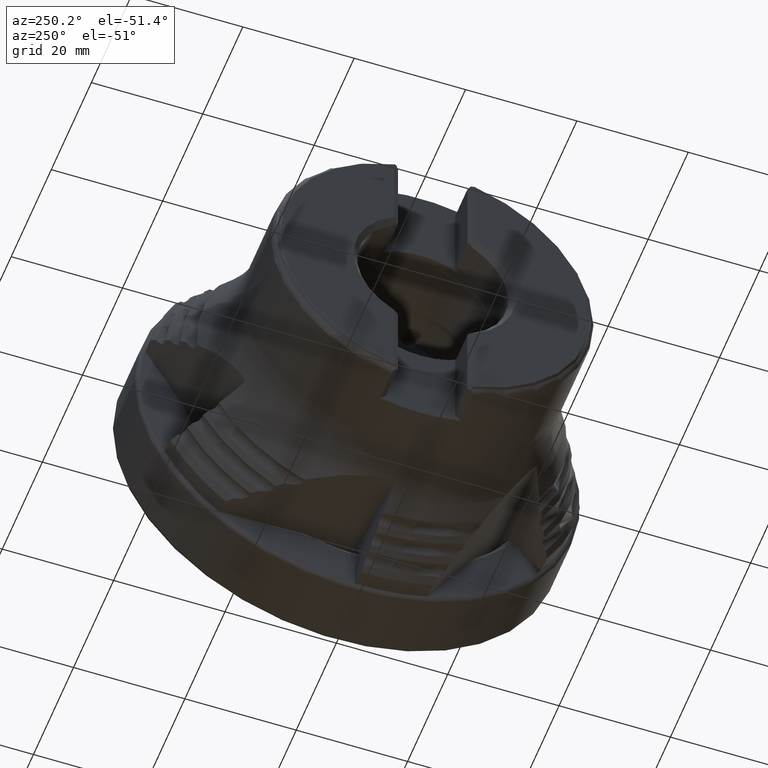
[diagram: clean part render]
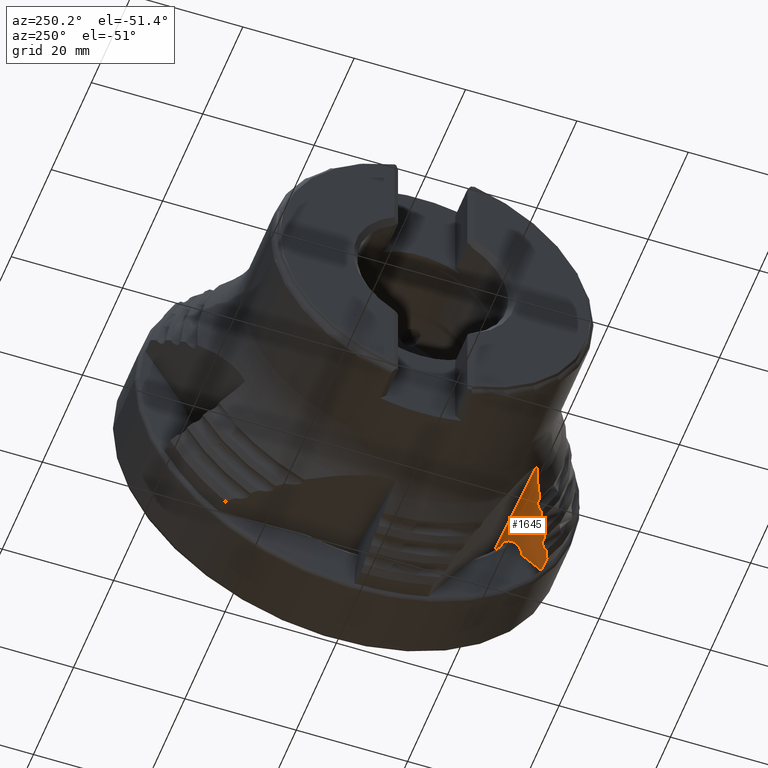
[diagram: same view with one face highlighted and labeled with its STEP entity id]
A machine part, auxiliary view. The second image highlights one B-rep face of the part: STEP entity #1645.
In plain terms, the highlighted planar face has unit normal (0.0872, -0.5279, 0.8448).
Its self-contained STEP definition (entity closure, byte-faithful):
#180 = B_SPLINE_CURVE_WITH_KNOTS ( 'NONE', 3,
 ( #1364, #1945, #3785, #212 ),
 .UNSPECIFIED., .F., .F.,
 ( 4, 4 ),
 ( 2.393202221186562000E-007, 0.001267775893203298500 ),
 .UNSPECIFIED. ) ;
#212 = CARTESIAN_POINT ( 'NONE',  ( -17.87761546026976900, -30.78924087254016900, -19.43037904005516100 ) ) ;
#237 = CARTESIAN_POINT ( 'NONE',  ( -35.49818372193254800, -45.30957772765204800, -26.68587113158388700 ) ) ;
#253 = CARTESIAN_POINT ( 'NONE',  ( -22.68271114136321400, -28.35504214169195700, -17.41360639773315800 ) ) ;
#315 = CARTESIAN_POINT ( 'NONE',  ( -10.49627634942228700, -25.74958786575979600, -17.04274828104389500 ) ) ;
#324 = CARTESIAN_POINT ( 'NONE',  ( -17.87761546026976900, -30.78924087254016900, -19.43037904005516100 ) ) ;
#368 = VERTEX_POINT ( 'NONE', #3416 ) ;
#375 = EDGE_LOOP ( 'NONE', ( #2739, #639, #5548, #5796, #2222, #3946, #6420, #1260, #3977, #5343, #4803, #2159, #4035, #6609 ) ) ;
#430 = CARTESIAN_POINT ( 'NONE',  ( -11.48116906496378100, -29.21719316011321200, -19.10794235054714800 ) ) ;
#432 = AXIS2_PLACEMENT_3D ( 'NONE', #237, #7309, #1973 ) ;
#486 = VERTEX_POINT ( 'NONE', #3599 ) ;
#498 = DIRECTION ( 'NONE',  ( 0.9961946980917455500, 0.04618550707053741000, -0.07391226170625109200 ) ) ;
#579 = EDGE_CURVE ( 'NONE', #368, #5728, #4556, .T. ) ;
#584 = CARTESIAN_POINT ( 'NONE',  ( -8.777313305419506100, -25.23234842245295100, -16.89687758524260600 ) ) ;
#606 = CARTESIAN_POINT ( 'NONE',  ( -10.11716968194206800, -25.55217615924534200, -16.95850219769159800 ) ) ;
#639 = ORIENTED_EDGE ( 'NONE', *, *, #3830, .T. ) ;
#693 = CARTESIAN_POINT ( 'NONE',  ( -14.96102753643332600, -32.18537522742863600, -20.60366965191446900 ) ) ;
#756 = CARTESIAN_POINT ( 'NONE',  ( -18.21451988597171800, -30.15749035727966600, -19.00086084666812500 ) ) ;
#765 = CARTESIAN_POINT ( 'NONE',  ( -14.14835086189767000, -32.67693935786176200, -20.99467259144020700 ) ) ;
#767 = EDGE_CURVE ( 'NONE', #1502, #368, #5754, .T. ) ;
#774 = CARTESIAN_POINT ( 'NONE',  ( -19.64847107614279100, -29.81267718317967700, -18.63746445664826400 ) ) ;
#839 = CARTESIAN_POINT ( 'NONE',  ( -21.29886849839389000, -28.55017792001260800, -17.67830453508434000 ) ) ;
#894 = B_SPLINE_CURVE_WITH_KNOTS ( 'NONE', 3,
 ( #6332, #3401, #5184, #1600 ),
 .UNSPECIFIED., .F., .F.,
 ( 4, 4 ),
 ( 2.362988217738771000E-007, 0.002602408553510816700 ),
 .UNSPECIFIED. ) ;
#990 = CARTESIAN_POINT ( 'NONE',  ( -11.15176865470789400, -32.75485674953783600, -21.35250241347022300 ) ) ;
#1111 = EDGE_CURVE ( 'NONE', #7137, #486, #6859, .T. ) ;
#1129 = EDGE_CURVE ( 'NONE', #6683, #2237, #6707, .T. ) ;
#1133 = B_SPLINE_CURVE_WITH_KNOTS ( 'NONE', 3,
 ( #4239, #693, #6165, #1491, #6788, #1601, #7308, #1222, #3901, #2575, #2787, #4582, #3131, #5774 ),
 .UNSPECIFIED., .F., .F.,
 ( 4, 2, 2, 2, 2, 2, 4 ),
 ( 1.312867785118386900E-006, 0.0003160476383539725100, 0.0006307824089228265700, 0.001260251950060518300, 0.001889721491198209900, 0.002204456261767054300, 0.002519191032335898300 ),
 .UNSPECIFIED. ) ;
#1222 = CARTESIAN_POINT ( 'NONE',  ( -15.78500099787651800, -31.34201645091687300, -19.99167558977522700 ) ) ;
#1230 = B_SPLINE_CURVE_WITH_KNOTS ( 'NONE', 3,
 ( #4577, #1300, #5562, #3208 ),
 .UNSPECIFIED., .F., .F.,
 ( 4, 4 ),
 ( 2.298359279697909100E-007, 0.0004358795206431314400 ),
 .UNSPECIFIED. ) ;
#1260 = ORIENTED_EDGE ( 'NONE', *, *, #2341, .T. ) ;
#1300 = CARTESIAN_POINT ( 'NONE',  ( -10.24353509753547800, -25.61798520663819900, -16.98658779891645300 ) ) ;
#1364 = CARTESIAN_POINT ( 'NONE',  ( -16.81838298245949700, -31.32527840217616000, -19.87460790969166500 ) ) ;
#1370 = CARTESIAN_POINT ( 'NONE',  ( -13.75000000000000500, -32.87845611278686400, -21.16168999960884600 ) ) ;
#1382 =( BOUNDED_CURVE ( )  B_SPLINE_CURVE ( 3, ( #6319, #5141, #1584, #430 ),
 .UNSPECIFIED., .F., .F. ) 
 B_SPLINE_CURVE_WITH_KNOTS ( ( 4, 4 ),
 ( 2.803270890037166600, 5.616140401976661400 ),
 .UNSPECIFIED. ) 
 CURVE ( )  GEOMETRIC_REPRESENTATION_ITEM ( )  RATIONAL_B_SPLINE_CURVE ( ( 1.000000000000000000, 0.4424150262017658700, 0.4424150262017658700, 1.000000000000000000 ) ) 
 REPRESENTATION_ITEM ( '' )  );
#1387 = CARTESIAN_POINT ( 'NONE',  ( -11.48116906496378100, -29.21719316011321200, -19.10794235054714800 ) ) ;
#1390 = CARTESIAN_POINT ( 'NONE',  ( -22.68271114136321400, -28.35504214169195700, -17.41360639773315800 ) ) ;
#1491 = CARTESIAN_POINT ( 'NONE',  ( -15.06215846062363700, -31.93740856151362100, -20.43828973632919200 ) ) ;
#1502 = VERTEX_POINT ( 'NONE', #2966 ) ;
#1518 = EDGE_CURVE ( 'NONE', #7649, #5094, #1382, .T. ) ;
#1584 = CARTESIAN_POINT ( 'NONE',  ( -14.20000287458415800, -28.18402444420076900, -18.18185909456516600 ) ) ;
#1600 = CARTESIAN_POINT ( 'NONE',  ( -27.80026368970385400, -25.98519413070558300, -15.40481001575272300 ) ) ;
#1601 = CARTESIAN_POINT ( 'NONE',  ( -15.28155076796657900, -31.64167093795711200, -20.23085880825363600 ) ) ;
#1645 = ADVANCED_FACE ( 'NONE', ( #3124 ), #2913, .F. ) ;
#1661 = CARTESIAN_POINT ( 'NONE',  ( -13.75000000000000500, -32.87845611278686400, -21.16168999960884600 ) ) ;
#1668 = EDGE_CURVE ( 'NONE', #6610, #7137, #4962, .T. ) ;
#1778 = CARTESIAN_POINT ( 'NONE',  ( -8.107448964456654700, -25.07219726827104000, -16.86591041961286300 ) ) ;
#1863 = CARTESIAN_POINT ( 'NONE',  ( -12.01780353258541100, -32.79624139208597500, -21.28901814300645500 ) ) ;
#1945 = CARTESIAN_POINT ( 'NONE',  ( -17.17147657616299500, -31.14662109575272500, -19.72654362471587700 ) ) ;
#1973 = DIRECTION ( 'NONE',  ( 0.9961946980917455500, 0.04618550707053746500, -0.07391226170625105100 ) ) ;
#2011 = CARTESIAN_POINT ( 'NONE',  ( -22.26798413005231200, -28.28925109685652100, -17.41528079554360900 ) ) ;
#2033 = CARTESIAN_POINT ( 'NONE',  ( -21.14639335887765300, -28.67260538991637000, -17.77053576737532800 ) ) ;
#2159 = ORIENTED_EDGE ( 'NONE', *, *, #1668, .T. ) ;
#2222 = ORIENTED_EDGE ( 'NONE', *, *, #5479, .T. ) ;
#2237 = VERTEX_POINT ( 'NONE', #5045 ) ;
#2337 = LINE ( 'NONE', #7585, #3571 ) ;
#2341 = EDGE_CURVE ( 'NONE', #5728, #7314, #1133, .T. ) ;
#2401 = EDGE_CURVE ( 'NONE', #2237, #6610, #4501, .T. ) ;
#2407 = VERTEX_POINT ( 'NONE', #6725 ) ;
#2575 = CARTESIAN_POINT ( 'NONE',  ( -16.29702501311031800, -31.25868577406206600, -19.88678197801416700 ) ) ;
#2600 = CARTESIAN_POINT ( 'NONE',  ( -25.50684292171271700, -26.92209841653759700, -16.22685295277334600 ) ) ;
#2604 = CARTESIAN_POINT ( 'NONE',  ( -20.82562437989260200, -29.21608018529210300, -18.14322855968187700 ) ) ;
#2665 = CARTESIAN_POINT ( 'NONE',  ( -18.71779943235798200, -29.85797073699992400, -18.76177951081673000 ) ) ;
#2733 = CARTESIAN_POINT ( 'NONE',  ( -20.80951514497603200, -29.30450725593064100, -18.20014583107615600 ) ) ;
#2739 = ORIENTED_EDGE ( 'NONE', *, *, #3217, .T. ) ;
#2787 = CARTESIAN_POINT ( 'NONE',  ( -16.40370676936820600, -31.25904079858622000, -19.87599802603735100 ) ) ;
#2856 = CARTESIAN_POINT ( 'NONE',  ( -14.94500000000001400, -32.27383440823838600, -20.66059855956763900 ) ) ;
#2913 = PLANE ( 'NONE',  #432 ) ;
#2914 = CARTESIAN_POINT ( 'NONE',  ( -20.10373156312534700, -29.66207627175714400, -18.49639173178941600 ) ) ;
#2945 = CARTESIAN_POINT ( 'NONE',  ( -24.56564030413131100, -27.39998290251093500, -16.62256724755887300 ) ) ;
#2966 = CARTESIAN_POINT ( 'NONE',  ( -11.15176865470789400, -32.75485674953783600, -21.35250241347022300 ) ) ;
#2981 = EDGE_CURVE ( 'NONE', #2407, #7649, #1230, .T. ) ;
#3124 = FACE_OUTER_BOUND ( 'NONE', #375, .T. ) ;
#3131 = CARTESIAN_POINT ( 'NONE',  ( -16.71602158651070300, -31.29707435863039000, -19.86754415434203500 ) ) ;
#3138 = CARTESIAN_POINT ( 'NONE',  ( -19.54506650516160000, -29.79399412686777600, -18.63645769330467800 ) ) ;
#3177 = B_SPLINE_CURVE_WITH_KNOTS ( 'NONE', 3,
 ( #3366, #6896, #4569, #990 ),
 .UNSPECIFIED., .F., .F.,
 ( 4, 4 ),
 ( 0.002837137621836247000, 0.007039710426473975300 ),
 .UNSPECIFIED. ) ;
#3185 = CARTESIAN_POINT ( 'NONE',  ( -23.62425335435997200, -27.87761781586506900, -17.01814460864651600 ) ) ;
#3208 = CARTESIAN_POINT ( 'NONE',  ( -10.49627634942228700, -25.74958786575979600, -17.04274828104389500 ) ) ;
#3217 = EDGE_CURVE ( 'NONE', #3265, #4645, #2337, .T. ) ;
#3223 = CARTESIAN_POINT ( 'NONE',  ( -20.92692641196599000, -28.96822980090768600, -17.97790365256054900 ) ) ;
#3265 = VERTEX_POINT ( 'NONE', #5235 ) ;
#3271 = CARTESIAN_POINT ( 'NONE',  ( -17.87761546026976900, -30.78924087254016900, -19.43037904005516100 ) ) ;
#3366 = CARTESIAN_POINT ( 'NONE',  ( -11.48116906496378100, -29.21719316011321200, -19.10794235054714800 ) ) ;
#3401 = CARTESIAN_POINT ( 'NONE',  ( -26.24099307215575600, -26.54934236941433000, -15.91819071190986400 ) ) ;
#3416 = CARTESIAN_POINT ( 'NONE',  ( -13.75000000000000500, -32.87845611278686400, -21.16168999960884600 ) ) ;
#3537 = CARTESIAN_POINT ( 'NONE',  ( -16.81838298245949700, -31.32527840217616000, -19.87460790969166500 ) ) ;
#3571 = VECTOR ( 'NONE', #498, 1000.000000000000100 ) ;
#3599 = CARTESIAN_POINT ( 'NONE',  ( -25.50684292171271700, -26.92209841653759700, -16.22685295277334600 ) ) ;
#3608 = CARTESIAN_POINT ( 'NONE',  ( -19.75081145665694400, -29.84082235277789900, -18.64449359152434800 ) ) ;
#3770 = CARTESIAN_POINT ( 'NONE',  ( -20.45663317069033800, -29.48330508136505300, -18.34827609041250100 ) ) ;
#3785 = CARTESIAN_POINT ( 'NONE',  ( -17.52455437419749600, -30.96794233073077900, -19.57846756047567600 ) ) ;
#3819 = CARTESIAN_POINT ( 'NONE',  ( -20.97525271980874700, -28.88935387623655500, -17.92363093352215500 ) ) ;
#3830 = EDGE_CURVE ( 'NONE', #4645, #2407, #4640, .T. ) ;
#3901 = CARTESIAN_POINT ( 'NONE',  ( -15.98612720268564600, -31.28581121157481700, -19.93580552515067300 ) ) ;
#3946 = ORIENTED_EDGE ( 'NONE', *, *, #767, .T. ) ;
#3977 = ORIENTED_EDGE ( 'NONE', *, *, #5056, .T. ) ;
#4035 = ORIENTED_EDGE ( 'NONE', *, *, #1111, .T. ) ;
#4183 = CARTESIAN_POINT ( 'NONE',  ( -9.447220890934794100, -25.39233906449122500, -16.92773999044006000 ) ) ;
#4239 = CARTESIAN_POINT ( 'NONE',  ( -14.94500000000001400, -32.27383440823838600, -20.66059855956763900 ) ) ;
#4381 = CARTESIAN_POINT ( 'NONE',  ( -21.85059638799013400, -28.31645720682507800, -17.47534075880884400 ) ) ;
#4431 = CARTESIAN_POINT ( 'NONE',  ( -22.47689820001884800, -28.30831844782994700, -17.40564283254190800 ) ) ;
#4461 = CARTESIAN_POINT ( 'NONE',  ( -18.36703017829875200, -30.03512847614837600, -18.90866697226018900 ) ) ;
#4501 = B_SPLINE_CURVE_WITH_KNOTS ( 'NONE', 3,
 ( #3608, #2914, #3770, #2733 ),
 .UNSPECIFIED., .F., .F.,
 ( 4, 4 ),
 ( 2.393844589402817300E-007, 0.001267493232345006500 ),
 .UNSPECIFIED. ) ;
#4556 = B_SPLINE_CURVE_WITH_KNOTS ( 'NONE', 3,
 ( #1661, #765, #6601, #2856 ),
 .UNSPECIFIED., .F., .F.,
 ( 4, 4 ),
 ( 2.393074312598472500E-007, 0.001430164143530590700 ),
 .UNSPECIFIED. ) ;
#4569 = CARTESIAN_POINT ( 'NONE',  ( -11.26156978504699800, -31.57563566588464400, -20.60431569382485500 ) ) ;
#4577 = CARTESIAN_POINT ( 'NONE',  ( -10.11716968194206800, -25.55217615924534200, -16.95850219769159800 ) ) ;
#4582 = CARTESIAN_POINT ( 'NONE',  ( -16.61259717658862900, -31.27833641726718400, -19.86650514169122400 ) ) ;
#4640 = B_SPLINE_CURVE_WITH_KNOTS ( 'NONE', 3,
 ( #7103, #584, #4183, #606 ),
 .UNSPECIFIED., .F., .F.,
 ( 4, 4 ),
 ( 0.0001807804877215287900, 0.002249096308107727600 ),
 .UNSPECIFIED. ) ;
#4645 = VERTEX_POINT ( 'NONE', #1778 ) ;
#4747 = CARTESIAN_POINT ( 'NONE',  ( -17.89372338317916800, -30.70082904616338500, -19.37347142968570400 ) ) ;
#4803 = ORIENTED_EDGE ( 'NONE', *, *, #2401, .T. ) ;
#4921 = CARTESIAN_POINT ( 'NONE',  ( -17.99502621303997100, -30.45302486571083400, -19.20817531168182800 ) ) ;
#4962 = B_SPLINE_CURVE_WITH_KNOTS ( 'NONE', 3,
 ( #5573, #2604, #6739, #3223, #3819, #2033, #839, #6141, #4381, #5602, #2011, #4431, #7336, #1390 ),
 .UNSPECIFIED., .F., .F.,
 ( 4, 2, 2, 2, 2, 2, 4 ),
 ( 1.305898720166998100E-006, 0.0003159758392047749800, 0.0006306457796893830300, 0.001259985660658586100, 0.001889325541627789600, 0.002203995482112396300, 0.002518665422597003200 ),
 .UNSPECIFIED. ) ;
#5004 = CARTESIAN_POINT ( 'NONE',  ( -19.22956207607029500, -29.77449807111139500, -18.65682413878590400 ) ) ;
#5033 = CARTESIAN_POINT ( 'NONE',  ( -19.33621337171211300, -29.77480190285319500, -18.64601134046998600 ) ) ;
#5045 = CARTESIAN_POINT ( 'NONE',  ( -19.75081145665694400, -29.84082235277789900, -18.64449359152434800 ) ) ;
#5056 = EDGE_CURVE ( 'NONE', #7314, #6683, #180, .T. ) ;
#5094 = VERTEX_POINT ( 'NONE', #1387 ) ;
#5141 = CARTESIAN_POINT ( 'NONE',  ( -13.45794495972155000, -25.57139068857421500, -16.62585854666830400 ) ) ;
#5184 = CARTESIAN_POINT ( 'NONE',  ( -27.00590477313054200, -26.23791438633953600, -15.64467699124057300 ) ) ;
#5199 = EDGE_CURVE ( 'NONE', #486, #3265, #894, .T. ) ;
#5235 = CARTESIAN_POINT ( 'NONE',  ( -27.80026368970385400, -25.98519413070558300, -15.40481001575272300 ) ) ;
#5343 = ORIENTED_EDGE ( 'NONE', *, *, #1129, .T. ) ;
#5460 = CARTESIAN_POINT ( 'NONE',  ( -22.68271114136321400, -28.35504214169195700, -17.41360639773315800 ) ) ;
#5479 = EDGE_CURVE ( 'NONE', #5094, #1502, #3177, .T. ) ;
#5548 = ORIENTED_EDGE ( 'NONE', *, *, #2981, .T. ) ;
#5552 = CARTESIAN_POINT ( 'NONE',  ( -20.80951514497603200, -29.30450725593064100, -18.20014583107615600 ) ) ;
#5562 = CARTESIAN_POINT ( 'NONE',  ( -10.36990401067360100, -25.68378907390145500, -17.01466980241378100 ) ) ;
#5573 = CARTESIAN_POINT ( 'NONE',  ( -20.80951514497603200, -29.30450725593064100, -18.20014583107615600 ) ) ;
#5602 = CARTESIAN_POINT ( 'NONE',  ( -22.16131194529637600, -28.28901821367560700, -17.42614008246088300 ) ) ;
#5728 = VERTEX_POINT ( 'NONE', #6660 ) ;
#5754 =( BOUNDED_CURVE ( )  B_SPLINE_CURVE ( 3, ( #7277, #1863, #6853, #1370 ),
 .UNSPECIFIED., .F., .F. ) 
 B_SPLINE_CURVE_WITH_KNOTS ( ( 4, 4 ),
 ( 1.551600277535033900, 1.557414760088303300 ),
 .UNSPECIFIED. ) 
 CURVE ( )  GEOMETRIC_REPRESENTATION_ITEM ( )  RATIONAL_B_SPLINE_CURVE ( ( 1.000000000000000000, 0.9999971826513709400, 0.9999971826513709400, 1.000000000000000000 ) ) 
 REPRESENTATION_ITEM ( '' )  );
#5774 = CARTESIAN_POINT ( 'NONE',  ( -16.81838298245949700, -31.32527840217616000, -19.87460790969166500 ) ) ;
#5796 = ORIENTED_EDGE ( 'NONE', *, *, #1518, .T. ) ;
#6141 = CARTESIAN_POINT ( 'NONE',  ( -21.64957247592101600, -28.37282526010575600, -17.53130200786952400 ) ) ;
#6165 = CARTESIAN_POINT ( 'NONE',  ( -14.98783518049225600, -32.10045416320313200, -20.54783947785021100 ) ) ;
#6319 = CARTESIAN_POINT ( 'NONE',  ( -10.49627634942228700, -25.74958786575979600, -17.04274828104389500 ) ) ;
#6332 = CARTESIAN_POINT ( 'NONE',  ( -25.50684292171271700, -26.92209841653759700, -16.22685295277334600 ) ) ;
#6420 = ORIENTED_EDGE ( 'NONE', *, *, #579, .T. ) ;
#6601 = CARTESIAN_POINT ( 'NONE',  ( -14.54668455155457500, -32.47539927023764500, -20.82764237495285200 ) ) ;
#6609 = ORIENTED_EDGE ( 'NONE', *, *, #5199, .T. ) ;
#6610 = VERTEX_POINT ( 'NONE', #5552 ) ;
#6660 = CARTESIAN_POINT ( 'NONE',  ( -14.94500000000001400, -32.27383440823838600, -20.66059855956763900 ) ) ;
#6683 = VERTEX_POINT ( 'NONE', #324 ) ;
#6707 = B_SPLINE_CURVE_WITH_KNOTS ( 'NONE', 3,
 ( #3271, #4747, #7077, #4921, #7353, #756, #4461, #2665, #7215, #5004, #5033, #3138, #774, #6840 ),
 .UNSPECIFIED., .F., .F.,
 ( 4, 2, 2, 2, 2, 2, 4 ),
 ( 1.305791816796080500E-006, 0.0003159242614408924100, 0.0006305427310649887100, 0.001259779670313193300, 0.001889016609561398200, 0.002203635079185500400, 0.002518253548809602200 ),
 .UNSPECIFIED. ) ;
#6725 = CARTESIAN_POINT ( 'NONE',  ( -10.11716968194206800, -25.55217615924534200, -16.95850219769159800 ) ) ;
#6739 = CARTESIAN_POINT ( 'NONE',  ( -20.85250192876548400, -29.13119635215855400, -18.08741443847377500 ) ) ;
#6788 = CARTESIAN_POINT ( 'NONE',  ( -15.11045417476487200, -31.85849201483343400, -20.38399479003366800 ) ) ;
#6840 = CARTESIAN_POINT ( 'NONE',  ( -19.75081145665694400, -29.84082235277789900, -18.64449359152434800 ) ) ;
#6853 = CARTESIAN_POINT ( 'NONE',  ( -12.88388308773090800, -32.83744129591013200, -21.22541382585711700 ) ) ;
#6859 = B_SPLINE_CURVE_WITH_KNOTS ( 'NONE', 3,
 ( #5460, #3185, #2945, #2600 ),
 .UNSPECIFIED., .F., .F.,
 ( 4, 4 ),
 ( 2.394601125926110700E-007, 0.003382166687502811900 ),
 .UNSPECIFIED. ) ;
#6896 = CARTESIAN_POINT ( 'NONE',  ( -11.37137004104099700, -30.39641448294897300, -19.85612900234248500 ) ) ;
#7077 = CARTESIAN_POINT ( 'NONE',  ( -17.92059894503448100, -30.61596001436445000, -19.31766676236814500 ) ) ;
#7103 = CARTESIAN_POINT ( 'NONE',  ( -8.107448964456654700, -25.07219726827104000, -16.86591041961286300 ) ) ;
#7137 = VERTEX_POINT ( 'NONE', #253 ) ;
#7215 = CARTESIAN_POINT ( 'NONE',  ( -18.91883814289984400, -29.80173437047017200, -18.70589902209012600 ) ) ;
#7277 = CARTESIAN_POINT ( 'NONE',  ( -11.15176865470789400, -32.75485674953783600, -21.35250241347022300 ) ) ;
#7308 = CARTESIAN_POINT ( 'NONE',  ( -15.43409150204812600, -31.51922626874159800, -20.13861006159339300 ) ) ;
#7309 = DIRECTION ( 'NONE',  ( 0.08715574274765841600, -0.5279027614457956200, 0.8448210171178316400 ) ) ;
#7314 = VERTEX_POINT ( 'NONE', #3537 ) ;
#7336 = CARTESIAN_POINT ( 'NONE',  ( -22.58033562299957000, -28.32694518026191900, -17.40661101165108700 ) ) ;
#7353 = CARTESIAN_POINT ( 'NONE',  ( -18.04335769386220900, -30.37416626710119500, -19.15391288549914600 ) ) ;
#7585 = CARTESIAN_POINT ( 'NONE',  ( -35.49818372193255600, -26.34208454656301200, -14.83366596017225300 ) ) ;
#7649 = VERTEX_POINT ( 'NONE', #315 ) ;